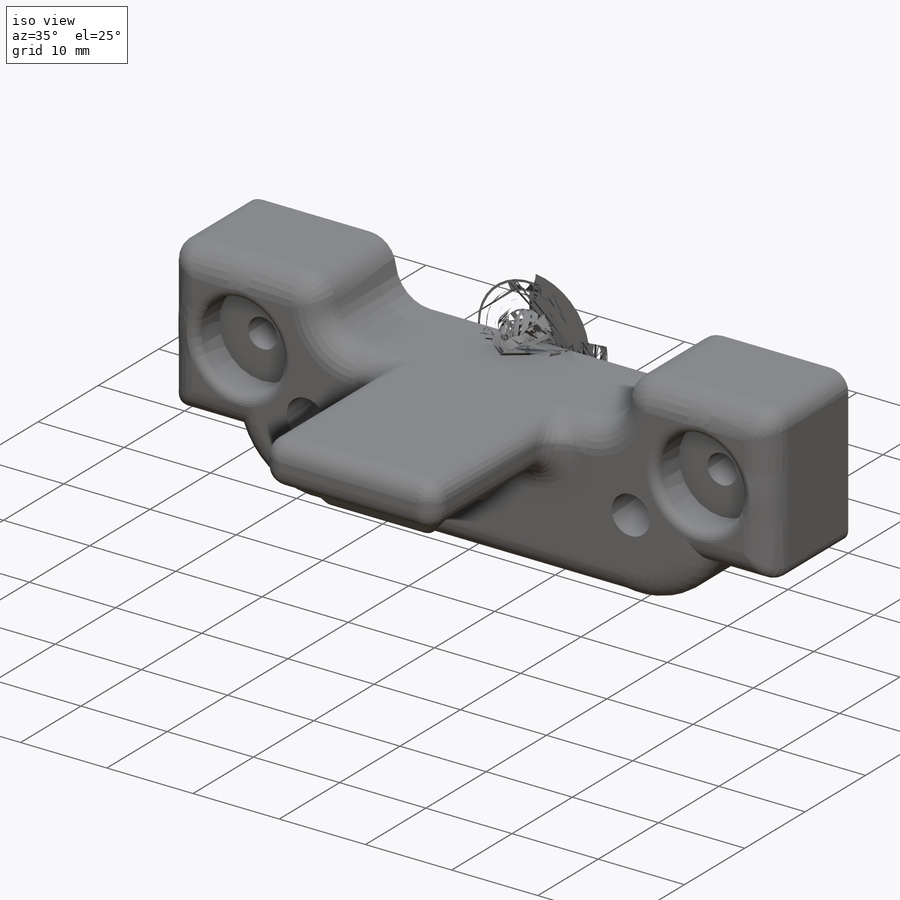
[diagram: iso view]
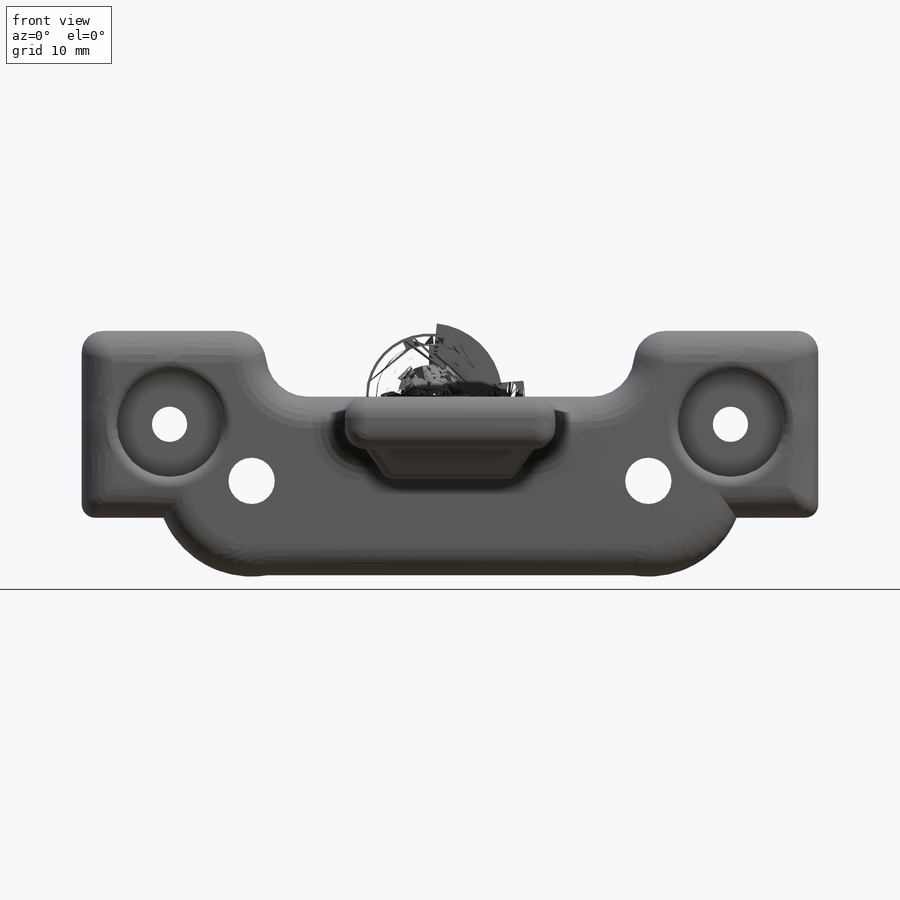
[diagram: front view]
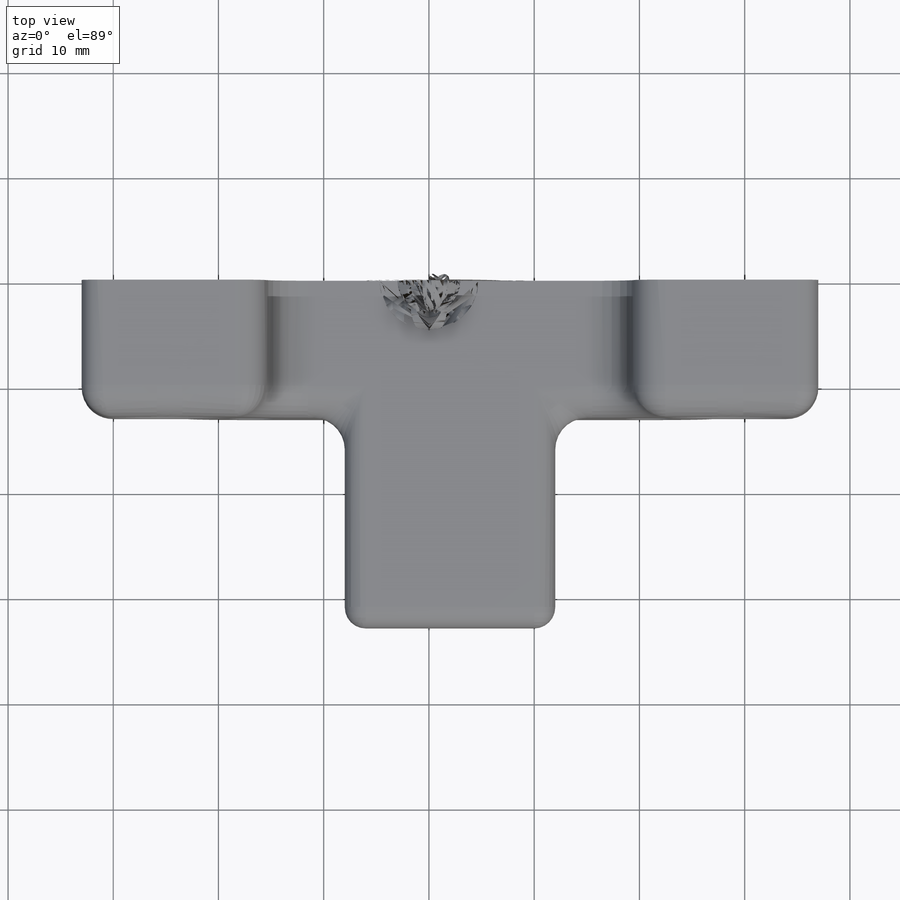
[diagram: top view]
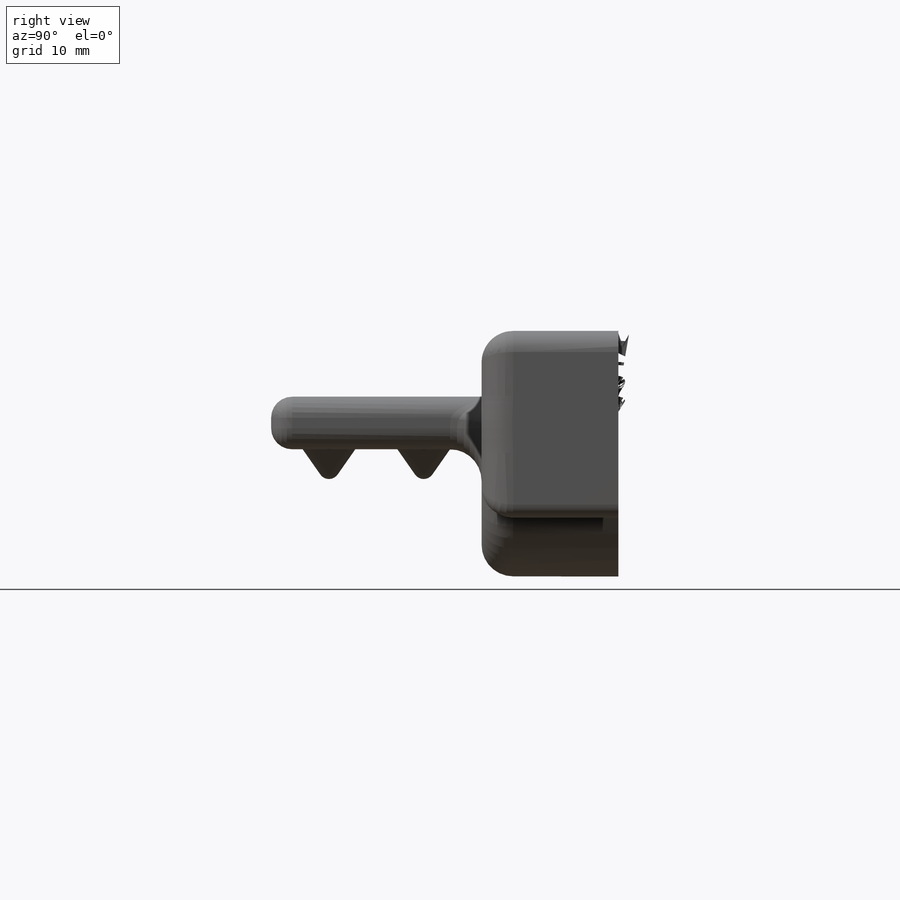
[diagram: right view]
SOLIDWORKS PART (.sldprt)
format: sldprt  version: not decoded by parser v0  size: 885,248 bytes
history: native  units: mm
features: sketch x6, fillet x5, extrude x3, cut_extrude x2, material x1, plane x1 (+13 scaffold rows collapsed)
feature tree (31):
  scaffold x13  (default folders/planes/origin — collapsed)
  material  "ABS"
  sketch  "Sketch1"  dims[c1.D3=2.0mm c1.D4=8.0mm c1.D5=8.0mm c1.D7=3.0mm c1.D8=4.4mm c1.D9=4.4mm c1.D10=3.35mm c1.D11=3.35mm c1.D13=~9.095148mm c1.D14=~9.095148mm c1.D17=4.4mm c1.D18=1.25mm c1.D19=4.4mm c1.D21=1.25mm c1.D22=3.35mm c1.D1=8.875mm c1.D2=8.875mm c1.D6=6.25mm c1.D12=70.0mm c2.D13=2.625mm c2.D15=5.375mm c2.D16=5.375mm c2.D17=37.7mm c2.D19=18.85mm c2.D20=35.0mm c2.D22=8.35mm c2.D3=2.0mm c2.D4=8.0mm c2.D5=8.0mm c2.D7=3.0mm c2.D1=8.875mm c2.D2=8.875mm c2.D6=6.25mm]
  extrude  "Boss-Extrude1"  Depth=13mm
  sketch  "Sketch2"  dims[D1=10.0mm]
  cut_extrude  "Cut-Extrude1"  Depth=3.4mm
  sketch  "Sketch4"  dims[c1.D3=2.0mm c1.D1=20.0mm c1.D2=5.0mm c2.D1=20.0mm c2.D2=5.0mm]
  extrude  "Boss-Extrude2"  Depth=20mm
  sketch  "Sketch5"  dims[D1=10.0mm]
  cut_extrude  "Cut-Extrude2"  Depth=4mm
  sketch  "Sketch6"  dims[D1=5.0mm D2=3.0mm]
  extrude  "Boss-Extrude3"  Depth=4mm
  fillet  "Fillet7"  Radius=1mm
  fillet  "Fillet1"  Radius=3mm
  fillet  "Fillet2"  Radius=2mm
  fillet  "Fillet4"  Radius=3mm
  fillet  "Fillet6"  Radius=1mm
  plane  "Plane2"  Offset=10mm
  sketch  "Sketch8"  dims[c1.D1=2.0mm c2.D1=0.75mm]
decode coverage: 16 of 16 modeling features carry decoded parameters
note: ~ marks probable driven/reference dimensions
note: suppression state not decoded; provenance and decode notes live in map.json
